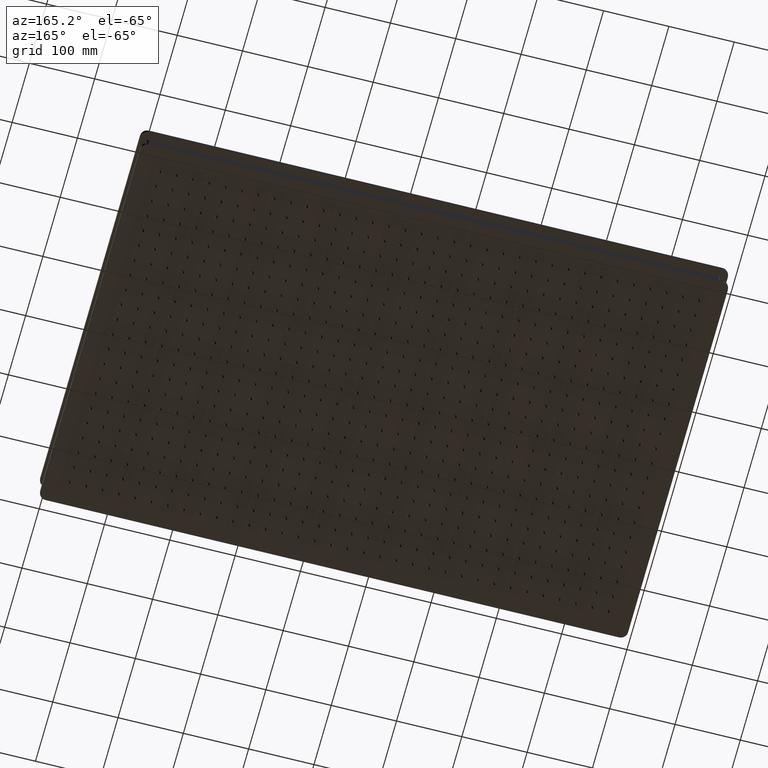
[diagram: clean part render]
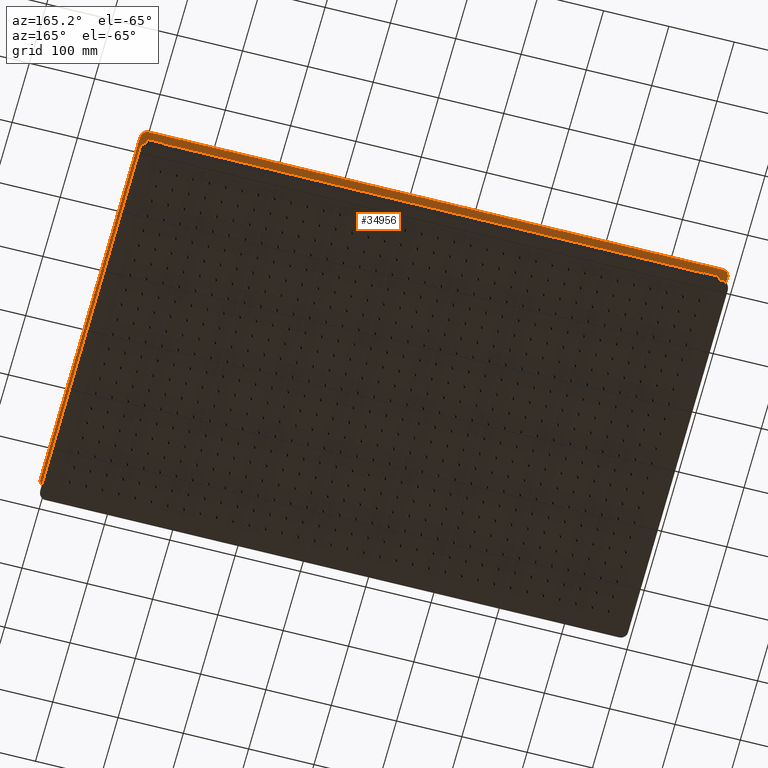
[diagram: same view with one face highlighted and labeled with its STEP entity id]
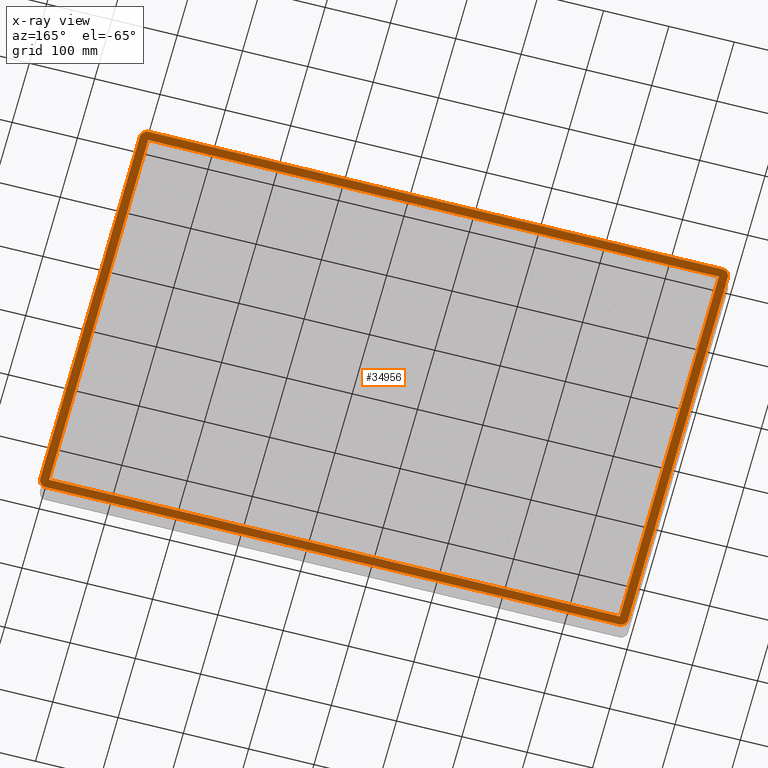
[diagram: x-ray of the same camera — body ghosted, the highlighted face saturated]
A machine part, auxiliary view. The second image highlights one B-rep face of the part: STEP entity #34956.
The next image is the same camera in x-ray: the body ghosted, the highlighted face saturated — about 0% of this face is hidden behind the body in this view.
In plain terms, the highlighted planar face has unit normal (0, 0, 1).
Its self-contained STEP definition (entity closure, byte-faithful):
#100 = EDGE_CURVE ( 'NONE', #16359, #48512, #1459, .T. ) ;
#901 = VERTEX_POINT ( 'NONE', #21212 ) ;
#1121 = EDGE_CURVE ( 'NONE', #27391, #25647, #33337, .T. ) ;
#1459 = CIRCLE ( 'NONE', #7441, 10.99999999999989875 ) ;
#2041 = CARTESIAN_POINT ( 'NONE',  ( 392.6333857621489187, 308.9691974502528637, -355.0013852687679901 ) ) ;
#3376 = DIRECTION ( 'NONE',  ( 0.000000000000000000, -1.000000000000000000, -0.000000000000000000 ) ) ;
#3707 = CARTESIAN_POINT ( 'NONE',  ( -483.3666142378505697, 595.9691974502527501, -355.0013852687700364 ) ) ;
#4326 = PLANE ( 'NONE',  #41300 ) ;
#4759 = DIRECTION ( 'NONE',  ( 0.000000000000000000, 1.000000000000000000, 0.000000000000000000 ) ) ;
#4806 = CARTESIAN_POINT ( 'NONE',  ( -485.3666142378509676, -280.0308025497471363, -355.0013852687678764 ) ) ;
#5259 = CIRCLE ( 'NONE', #40147, 11.00000000000001066 ) ;
#5378 = ORIENTED_EDGE ( 'NONE', *, *, #100, .F. ) ;
#5877 = CARTESIAN_POINT ( 'NONE',  ( 403.6333857621488050, 297.9691974502528637, -355.0013852687679901 ) ) ;
#6442 = CARTESIAN_POINT ( 'NONE',  ( -496.3666142378511381, -280.0308025497471363, -355.0013852687678764 ) ) ;
#7007 = EDGE_CURVE ( 'NONE', #37200, #43841, #31030, .T. ) ;
#7441 = AXIS2_PLACEMENT_3D ( 'NONE', #60383, #21356, #26988 ) ;
#7597 = CARTESIAN_POINT ( 'NONE',  ( -246.3666142378505697, -278.0308025497471363, -355.0013852687700364 ) ) ;
#7854 = DIRECTION ( 'NONE',  ( 0.000000000000000000, 1.000000000000000000, 0.000000000000000000 ) ) ;
#8536 = EDGE_CURVE ( 'NONE', #43841, #15163, #42004, .T. ) ;
#9085 = VECTOR ( 'NONE', #56371, 1000.000000000000000 ) ;
#9220 = VECTOR ( 'NONE', #38691, 1000.000000000000000 ) ;
#10994 = CARTESIAN_POINT ( 'NONE',  ( -985.3666142378513086, -291.0308025497471931, -355.0013852687678764 ) ) ;
#11257 = ORIENTED_EDGE ( 'NONE', *, *, #39568, .T. ) ;
#13247 = CARTESIAN_POINT ( 'NONE',  ( -485.3666142378509676, -291.0308025497471931, -355.0013852687678764 ) ) ;
#14003 = FACE_BOUND ( 'NONE', #22979, .T. ) ;
#14522 = CIRCLE ( 'NONE', #48465, 10.99999999999995381 ) ;
#14708 = ORIENTED_EDGE ( 'NONE', *, *, #60407, .F. ) ;
#14807 = VECTOR ( 'NONE', #54264, 1000.000000000000000 ) ;
#15163 = VERTEX_POINT ( 'NONE', #61541 ) ;
#15699 = DIRECTION ( 'NONE',  ( -1.000000000000000000, 0.000000000000000000, 0.000000000000000000 ) ) ;
#16359 = VERTEX_POINT ( 'NONE', #52383 ) ;
#16630 = VERTEX_POINT ( 'NONE', #6442 ) ;
#16685 = CARTESIAN_POINT ( 'NONE',  ( -496.3666142378511381, 297.9691974502528637, -355.0013852687679901 ) ) ;
#16857 = ORIENTED_EDGE ( 'NONE', *, *, #36667, .T. ) ;
#19644 = CARTESIAN_POINT ( 'NONE',  ( -496.3666142378511381, 597.9691974502527501, -355.0013852687679901 ) ) ;
#20057 = VERTEX_POINT ( 'NONE', #16685 ) ;
#20368 = ORIENTED_EDGE ( 'NONE', *, *, #8536, .T. ) ;
#21212 = CARTESIAN_POINT ( 'NONE',  ( -483.3666142378505697, 295.9691974502528637, -355.0013852687700364 ) ) ;
#21356 = DIRECTION ( 'NONE',  ( 0.000000000000000000, 1.224646799147353207E-16, 1.000000000000000000 ) ) ;
#22781 = FACE_OUTER_BOUND ( 'NONE', #53353, .T. ) ;
#22979 = EDGE_LOOP ( 'NONE', ( #51896, #20368, #55422, #44877 ) ) ;
#23540 = DIRECTION ( 'NONE',  ( 0.000000000000000000, 1.000000000000000000, 0.000000000000000000 ) ) ;
#23607 = ORIENTED_EDGE ( 'NONE', *, *, #49231, .F. ) ;
#24134 = VECTOR ( 'NONE', #24610, 1000.000000000000000 ) ;
#24610 = DIRECTION ( 'NONE',  ( 1.000000000000000000, 0.000000000000000000, 0.000000000000000000 ) ) ;
#25647 = VERTEX_POINT ( 'NONE', #2041 ) ;
#26472 = LINE ( 'NONE', #58955, #14807 ) ;
#26844 = LINE ( 'NONE', #3707, #55794 ) ;
#26988 = DIRECTION ( 'NONE',  ( 0.000000000000000000, 1.000000000000000000, 0.000000000000000000 ) ) ;
#27391 = VERTEX_POINT ( 'NONE', #44551 ) ;
#28070 = CARTESIAN_POINT ( 'NONE',  ( 390.6333857621494303, -278.0308025497471363, -355.0013852687701501 ) ) ;
#28387 = CARTESIAN_POINT ( 'NONE',  ( 492.6333857621488619, 597.9691974502527501, -355.0013852687679901 ) ) ;
#28728 = LINE ( 'NONE', #19644, #9220 ) ;
#29420 = CARTESIAN_POINT ( 'NONE',  ( 403.6333857621488050, 597.9691974502527501, -355.0013852687679901 ) ) ;
#31030 = LINE ( 'NONE', #7597, #42023 ) ;
#31166 = VECTOR ( 'NONE', #15699, 1000.000000000000000 ) ;
#32541 = CARTESIAN_POINT ( 'NONE',  ( 392.6333857621489187, 297.9691974502528637, -355.0013852687679901 ) ) ;
#33337 = LINE ( 'NONE', #48035, #24134 ) ;
#34956 = ADVANCED_FACE ( 'NONE', ( #22781, #14003 ), #4326, .F. ) ;
#36667 = EDGE_CURVE ( 'NONE', #16359, #51584, #53182, .T. ) ;
#36944 = EDGE_CURVE ( 'NONE', #16630, #20057, #28728, .T. ) ;
#37105 = DIRECTION ( 'NONE',  ( 0.000000000000000000, -1.000000000000000000, 1.224646799147353207E-16 ) ) ;
#37200 = VERTEX_POINT ( 'NONE', #51429 ) ;
#38691 = DIRECTION ( 'NONE',  ( -1.209632619948746639E-16, 1.000000000000000000, -1.224646799147353207E-16 ) ) ;
#39568 = EDGE_CURVE ( 'NONE', #48417, #48512, #48780, .T. ) ;
#39623 = ORIENTED_EDGE ( 'NONE', *, *, #40345, .F. ) ;
#39877 = ORIENTED_EDGE ( 'NONE', *, *, #36944, .T. ) ;
#40147 = AXIS2_PLACEMENT_3D ( 'NONE', #45953, #60309, #7854 ) ;
#40345 = EDGE_CURVE ( 'NONE', #48417, #25647, #14522, .T. ) ;
#40716 = DIRECTION ( 'NONE',  ( 1.000000000000000000, 0.000000000000000000, 0.000000000000000000 ) ) ;
#41300 = AXIS2_PLACEMENT_3D ( 'NONE', #28387, #41817, #37105 ) ;
#41817 = DIRECTION ( 'NONE',  ( 0.000000000000000000, 1.224646799147353207E-16, 1.000000000000000000 ) ) ;
#42004 = LINE ( 'NONE', #61060, #9085 ) ;
#42023 = VECTOR ( 'NONE', #40716, 1000.000000000000000 ) ;
#43841 = VERTEX_POINT ( 'NONE', #28070 ) ;
#43971 = CARTESIAN_POINT ( 'NONE',  ( 403.6333857621488050, -280.0308025497471363, -355.0013852687678764 ) ) ;
#44551 = CARTESIAN_POINT ( 'NONE',  ( -485.3666142378511950, 308.9691974502528637, -355.0013852687679901 ) ) ;
#44877 = ORIENTED_EDGE ( 'NONE', *, *, #47560, .T. ) ;
#44986 = AXIS2_PLACEMENT_3D ( 'NONE', #4806, #47587, #23540 ) ;
#45627 = ORIENTED_EDGE ( 'NONE', *, *, #1121, .T. ) ;
#45953 = CARTESIAN_POINT ( 'NONE',  ( -485.3666142378511950, 297.9691974502528637, -355.0013852687679901 ) ) ;
#47560 = EDGE_CURVE ( 'NONE', #901, #37200, #26844, .T. ) ;
#47587 = DIRECTION ( 'NONE',  ( 0.000000000000000000, 1.224646799147353207E-16, 1.000000000000000000 ) ) ;
#48035 = CARTESIAN_POINT ( 'NONE',  ( -985.3666142378513086, 308.9691974502528637, -355.0013852687679901 ) ) ;
#48417 = VERTEX_POINT ( 'NONE', #5877 ) ;
#48465 = AXIS2_PLACEMENT_3D ( 'NONE', #32541, #55971, #4759 ) ;
#48512 = VERTEX_POINT ( 'NONE', #43971 ) ;
#48780 = LINE ( 'NONE', #29420, #60268 ) ;
#49062 = DIRECTION ( 'NONE',  ( 0.000000000000000000, -1.000000000000000000, 1.224646799147353207E-16 ) ) ;
#49231 = EDGE_CURVE ( 'NONE', #16630, #51584, #55947, .T. ) ;
#51429 = CARTESIAN_POINT ( 'NONE',  ( -483.3666142378505697, -278.0308025497471363, -355.0013852687700364 ) ) ;
#51584 = VERTEX_POINT ( 'NONE', #13247 ) ;
#51896 = ORIENTED_EDGE ( 'NONE', *, *, #7007, .T. ) ;
#52383 = CARTESIAN_POINT ( 'NONE',  ( 392.6333857621489187, -291.0308025497470794, -355.0013852687678764 ) ) ;
#53182 = LINE ( 'NONE', #10994, #31166 ) ;
#53353 = EDGE_LOOP ( 'NONE', ( #39877, #14708, #45627, #39623, #11257, #5378, #16857, #23607 ) ) ;
#54264 = DIRECTION ( 'NONE',  ( 1.000000000000000000, 0.000000000000000000, 0.000000000000000000 ) ) ;
#55422 = ORIENTED_EDGE ( 'NONE', *, *, #55901, .F. ) ;
#55794 = VECTOR ( 'NONE', #3376, 1000.000000000000000 ) ;
#55901 = EDGE_CURVE ( 'NONE', #901, #15163, #26472, .T. ) ;
#55947 = CIRCLE ( 'NONE', #44986, 11.00000000000001066 ) ;
#55971 = DIRECTION ( 'NONE',  ( 0.000000000000000000, 1.224646799147353207E-16, 1.000000000000000000 ) ) ;
#56371 = DIRECTION ( 'NONE',  ( 0.000000000000000000, 1.000000000000000000, -0.000000000000000000 ) ) ;
#58955 = CARTESIAN_POINT ( 'NONE',  ( -246.3666142378505697, 295.9691974502528637, -355.0013852687700364 ) ) ;
#60268 = VECTOR ( 'NONE', #49062, 1000.000000000000000 ) ;
#60309 = DIRECTION ( 'NONE',  ( 0.000000000000000000, 1.224646799147353207E-16, 1.000000000000000000 ) ) ;
#60383 = CARTESIAN_POINT ( 'NONE',  ( 392.6333857621489187, -280.0308025497471363, -355.0013852687678764 ) ) ;
#60407 = EDGE_CURVE ( 'NONE', #27391, #20057, #5259, .T. ) ;
#61060 = CARTESIAN_POINT ( 'NONE',  ( 390.6333857621494303, 595.9691974502527501, -355.0013852687701501 ) ) ;
#61541 = CARTESIAN_POINT ( 'NONE',  ( 390.6333857621494303, 295.9691974502528637, -355.0013852687701501 ) ) ;